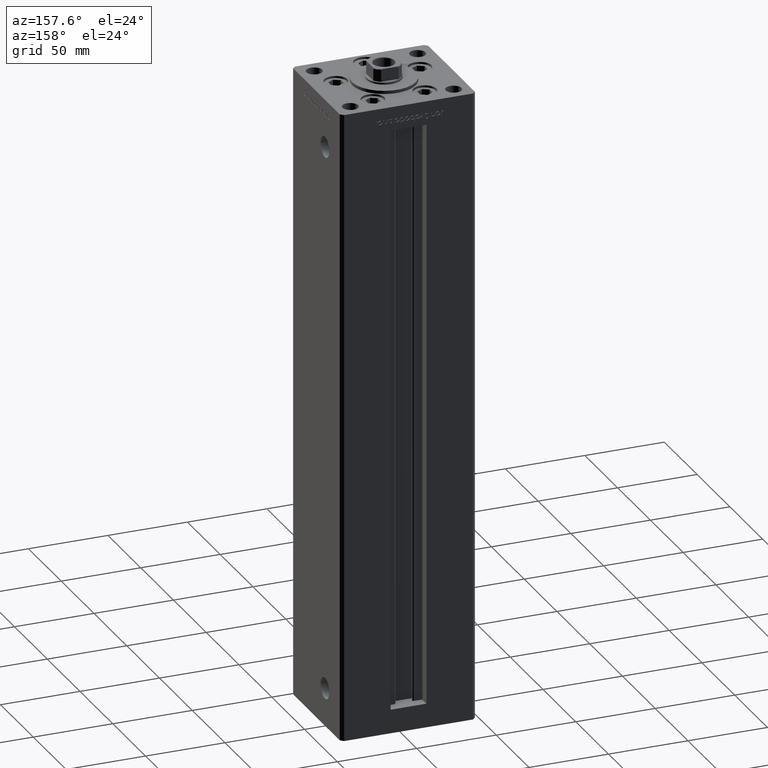
[diagram: clean part render]
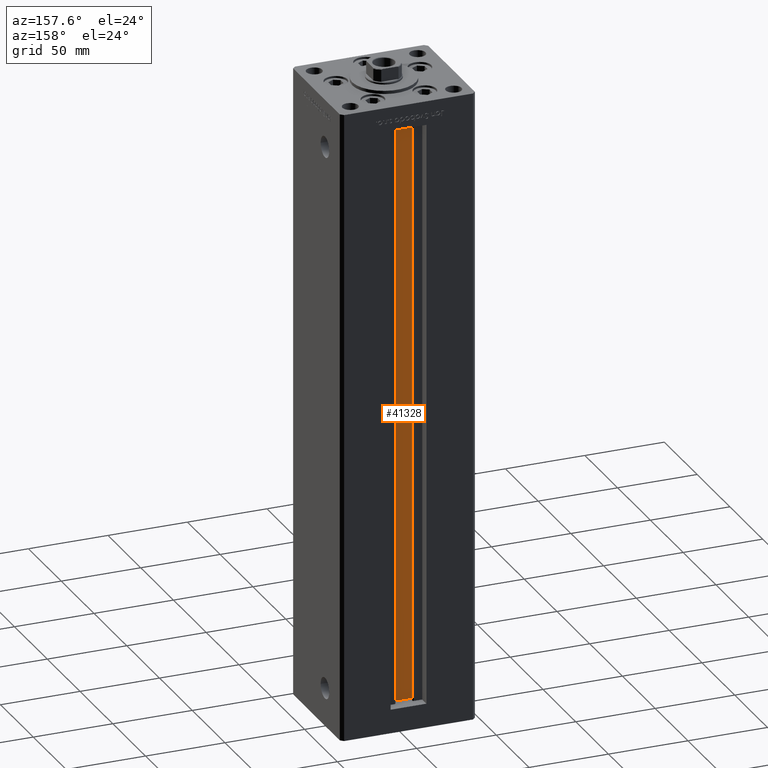
[diagram: same view with one face highlighted and labeled with its STEP entity id]
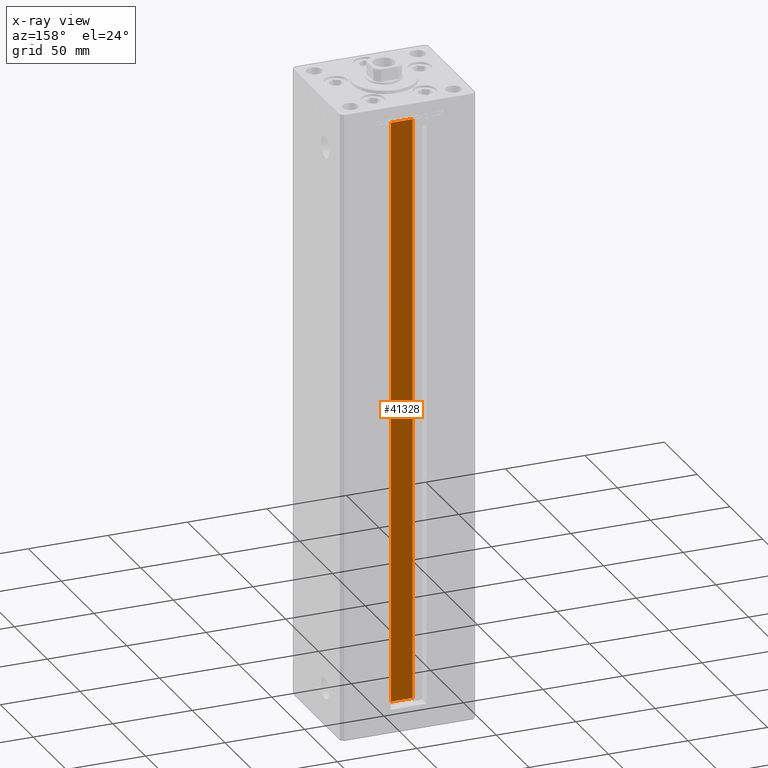
[diagram: x-ray of the same camera — body ghosted, the highlighted face saturated]
A machine part, auxiliary view. The second image highlights one B-rep face of the part: STEP entity #41328.
The next image is the same camera in x-ray: the body ghosted, the highlighted face saturated — about 0% of this face is hidden behind the body in this view.
In plain terms, the highlighted planar face has unit normal (0, -1, 0).
Its self-contained STEP definition (entity closure, byte-faithful):
#1717 = LINE ( 'NONE', #9629, #8836 ) ;
#4990 = CARTESIAN_POINT ( 'NONE',  ( -6.876153656360465938, 26.99999999999986855, 0.000000000000000000 ) ) ;
#5152 = DIRECTION ( 'NONE',  ( -0.000000000000000000, -0.000000000000000000, 1.000000000000000000 ) ) ;
#8836 = VECTOR ( 'NONE', #17293, 1000.000000000000000 ) ;
#9254 = CARTESIAN_POINT ( 'NONE',  ( 6.876153656360465938, 26.99999999999986855, 368.5000000000000000 ) ) ;
#9629 = CARTESIAN_POINT ( 'NONE',  ( 0.000000000000000000, 26.99999999999986855, 368.5000000000000000 ) ) ;
#13966 = VECTOR ( 'NONE', #5152, 1000.000000000000000 ) ;
#15099 = DIRECTION ( 'NONE',  ( 1.000000000000000000, -0.000000000000000000, -0.000000000000000000 ) ) ;
#15948 = VECTOR ( 'NONE', #31044, 1000.000000000000000 ) ;
#16093 = CARTESIAN_POINT ( 'NONE',  ( 6.876153656360465938, 26.99999999999986855, 0.000000000000000000 ) ) ;
#17293 = DIRECTION ( 'NONE',  ( -1.000000000000000000, 0.000000000000000000, 0.000000000000000000 ) ) ;
#18537 = CARTESIAN_POINT ( 'NONE',  ( 6.876153656360465938, 26.99999999999986855, 0.000000000000000000 ) ) ;
#18563 = VECTOR ( 'NONE', #15099, 1000.000000000000000 ) ;
#20628 = EDGE_CURVE ( 'NONE', #50224, #29236, #20970, .T. ) ;
#20970 = LINE ( 'NONE', #37068, #13966 ) ;
#21495 = ORIENTED_EDGE ( 'NONE', *, *, #43902, .F. ) ;
#22902 = EDGE_CURVE ( 'NONE', #43218, #29236, #1717, .T. ) ;
#28705 = ORIENTED_EDGE ( 'NONE', *, *, #20628, .T. ) ;
#29236 = VERTEX_POINT ( 'NONE', #49640 ) ;
#29284 = DIRECTION ( 'NONE',  ( 0.000000000000000000, -1.000000000000000000, -0.000000000000000000 ) ) ;
#30152 = ORIENTED_EDGE ( 'NONE', *, *, #35801, .F. ) ;
#31044 = DIRECTION ( 'NONE',  ( -0.000000000000000000, -0.000000000000000000, 1.000000000000000000 ) ) ;
#32816 = AXIS2_PLACEMENT_3D ( 'NONE', #16093, #29284, #36672 ) ;
#35801 = EDGE_CURVE ( 'NONE', #49758, #43218, #39476, .T. ) ;
#36179 = CARTESIAN_POINT ( 'NONE',  ( 6.876153656360465938, 26.99999999999986855, 0.000000000000000000 ) ) ;
#36672 = DIRECTION ( 'NONE',  ( 0.000000000000000000, 0.000000000000000000, -1.000000000000000000 ) ) ;
#37068 = CARTESIAN_POINT ( 'NONE',  ( -6.876153656360465938, 26.99999999999986855, 0.000000000000000000 ) ) ;
#39476 = LINE ( 'NONE', #46617, #15948 ) ;
#40621 = PLANE ( 'NONE',  #32816 ) ;
#41328 = ADVANCED_FACE ( 'NONE', ( #44318 ), #40621, .F. ) ;
#42810 = LINE ( 'NONE', #18537, #18563 ) ;
#43218 = VERTEX_POINT ( 'NONE', #9254 ) ;
#43902 = EDGE_CURVE ( 'NONE', #50224, #49758, #42810, .T. ) ;
#44318 = FACE_OUTER_BOUND ( 'NONE', #49066, .T. ) ;
#46523 = ORIENTED_EDGE ( 'NONE', *, *, #22902, .F. ) ;
#46617 = CARTESIAN_POINT ( 'NONE',  ( 6.876153656360465938, 26.99999999999986855, 0.000000000000000000 ) ) ;
#49066 = EDGE_LOOP ( 'NONE', ( #30152, #21495, #28705, #46523 ) ) ;
#49640 = CARTESIAN_POINT ( 'NONE',  ( -6.876153656360465938, 26.99999999999986855, 368.5000000000000000 ) ) ;
#49758 = VERTEX_POINT ( 'NONE', #36179 ) ;
#50224 = VERTEX_POINT ( 'NONE', #4990 ) ;